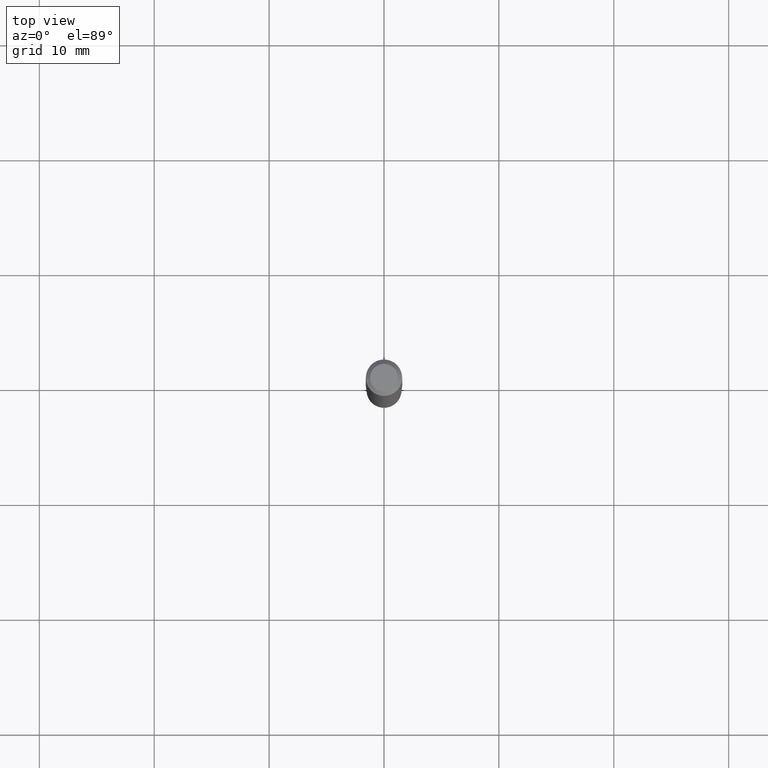
[diagram: clean part render]
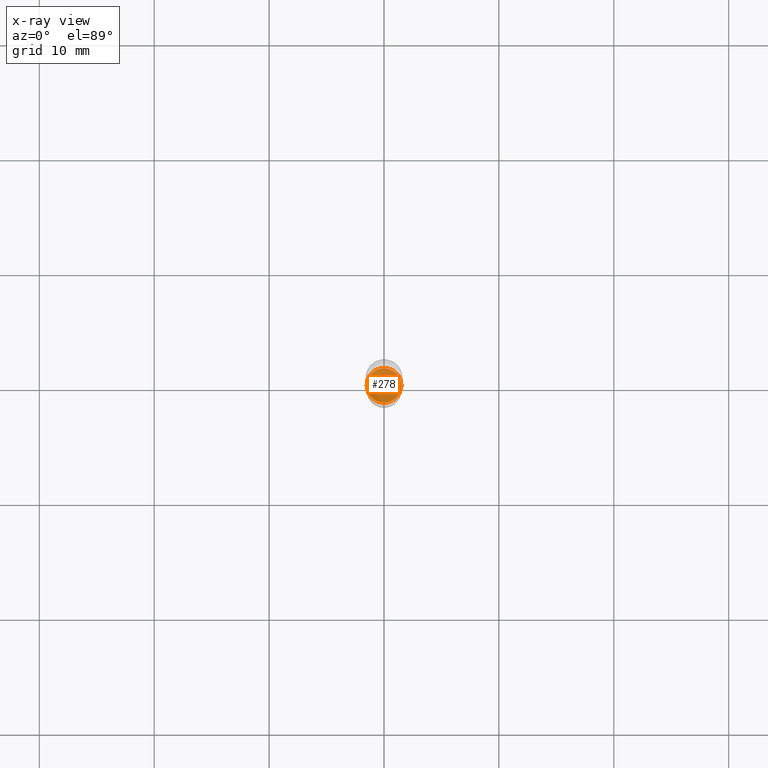
[diagram: x-ray — body ghosted, one internal face saturated and labeled with its STEP entity id]
A machine part, top view, then the same camera in x-ray: the body is ghosted and one INTERNAL B-rep face — a face not visible from any outside direction — is saturated and labeled: STEP entity #278.
In plain terms, the highlighted planar face has unit normal (-0, 0, 1).
Its self-contained STEP definition (entity closure, byte-faithful):
#22 = ORIENTED_EDGE ( 'NONE', *, *, #320, .F. ) ;
#42 = DIRECTION ( 'NONE',  ( 1.000000000000000000, -6.982962677686259611E-15, 0.000000000000000000 ) ) ;
#49 = DIRECTION ( 'NONE',  ( -2.438088387897960049E-29, 3.491481338843145188E-15, 1.000000000000000000 ) ) ;
#54 = CARTESIAN_POINT ( 'NONE',  ( 3.766021961525110516E-29, -5.376881261818443984E-15, -1.540000000000000036 ) ) ;
#62 = VERTEX_POINT ( 'NONE', #445 ) ;
#104 = AXIS2_PLACEMENT_3D ( 'NONE', #54, #150, #42 ) ;
#120 = AXIS2_PLACEMENT_3D ( 'NONE', #369, #49, #340 ) ;
#150 = DIRECTION ( 'NONE',  ( -2.445468806185136597E-29, 3.491481338843145583E-15, 1.000000000000000000 ) ) ;
#189 = CARTESIAN_POINT ( 'NONE',  ( 3.766021961525110516E-29, -5.376881261818443984E-15, -1.540000000000000036 ) ) ;
#197 = AXIS2_PLACEMENT_3D ( 'NONE', #189, #337, #443 ) ;
#203 = CIRCLE ( 'NONE', #104, 0.05949999999999999734 ) ;
#205 = ORIENTED_EDGE ( 'NONE', *, *, #332, .F. ) ;
#225 = FACE_OUTER_BOUND ( 'NONE', #419, .T. ) ;
#240 = CIRCLE ( 'NONE', #197, 0.05949999999999999734 ) ;
#273 = VERTEX_POINT ( 'NONE', #402 ) ;
#278 = ADVANCED_FACE ( 'NONE', ( #225 ), #368, .F. ) ;
#320 = EDGE_CURVE ( 'NONE', #62, #273, #240, .T. ) ;
#332 = EDGE_CURVE ( 'NONE', #273, #62, #203, .T. ) ;
#337 = DIRECTION ( 'NONE',  ( -2.445468806185136597E-29, 3.491481338843145583E-15, 1.000000000000000000 ) ) ;
#340 = DIRECTION ( 'NONE',  ( 1.000000000000000000, -6.982962677686265922E-15, 4.876176775795935793E-29 ) ) ;
#368 = PLANE ( 'NONE',  #120 ) ;
#369 = CARTESIAN_POINT ( 'NONE',  ( 3.766021961525110516E-29, -5.376881261818443984E-15, -1.540000000000000036 ) ) ;
#402 = CARTESIAN_POINT ( 'NONE',  ( -0.05949999999999999734, -4.951459106867075558E-15, -1.540000000000000036 ) ) ;
#419 = EDGE_LOOP ( 'NONE', ( #22, #205 ) ) ;
#443 = DIRECTION ( 'NONE',  ( 1.000000000000000000, -6.982962677686259611E-15, 0.000000000000000000 ) ) ;
#445 = CARTESIAN_POINT ( 'NONE',  ( 0.05949999999999999734, -5.792367541140776822E-15, -1.540000000000000036 ) ) ;